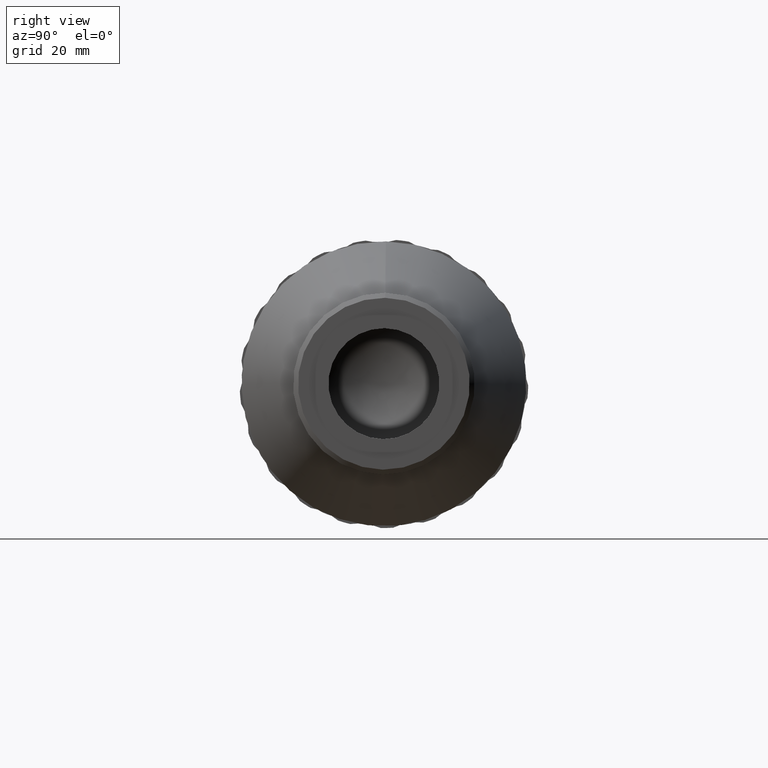
[diagram: clean part render]
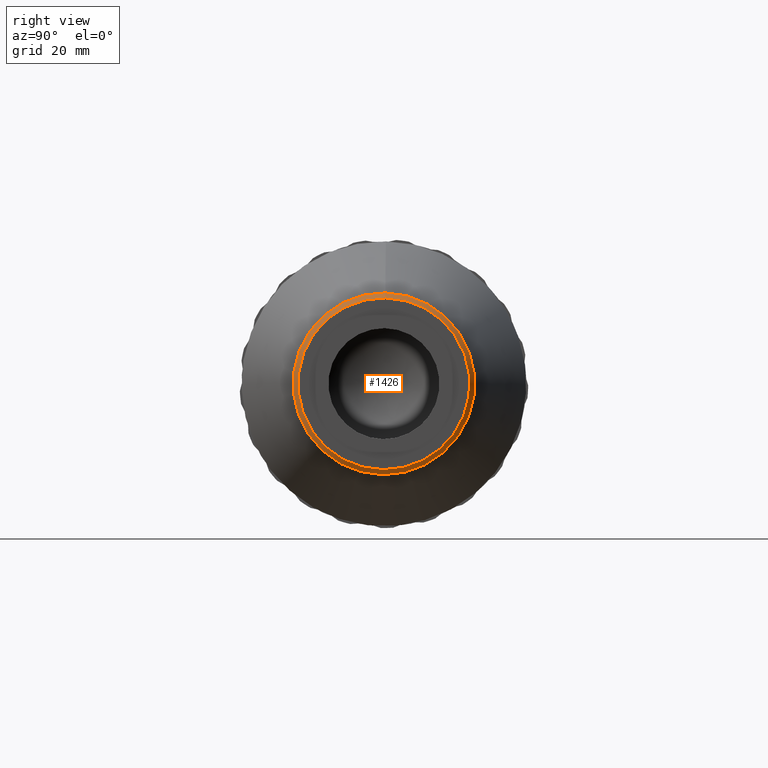
[diagram: same view with one face highlighted and labeled with its STEP entity id]
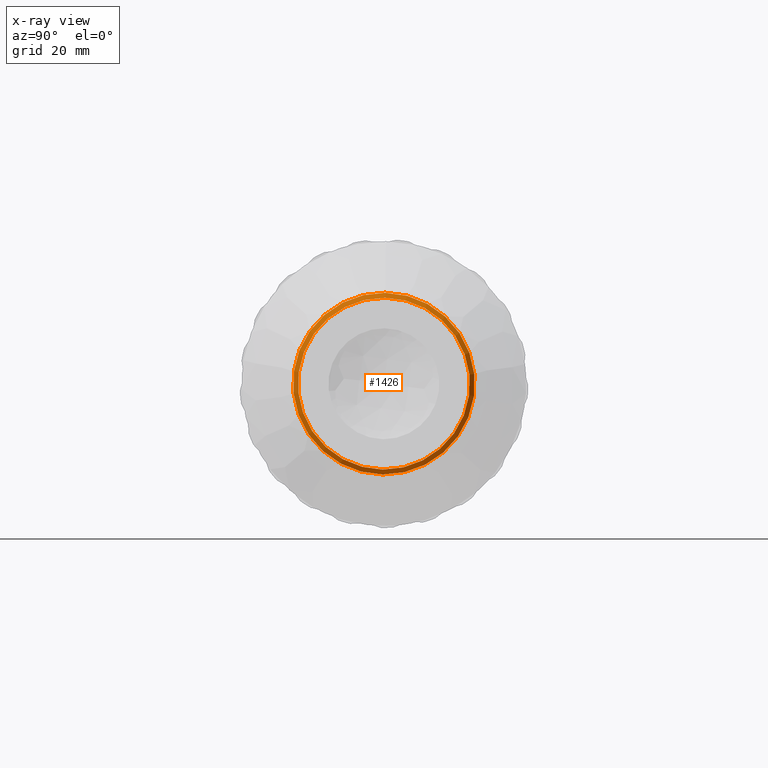
[diagram: x-ray of the same camera — body ghosted, the highlighted face saturated]
A machine part, right view. The second image highlights one B-rep face of the part: STEP entity #1426.
The next image is the same camera in x-ray: the body ghosted, the highlighted face saturated — about 0% of this face is hidden behind the body in this view.
In plain terms, the highlighted conical surface has half-angle 45 deg.
Its self-contained STEP definition (entity closure, byte-faithful):
#127 = CARTESIAN_POINT ( 'NONE',  ( 55.73857057699896700, 7.505051596864218411, 147.3481904415022541 ) ) ;
#655 = ORIENTED_EDGE ( 'NONE', *, *, #3024, .F. ) ;
#791 = DIRECTION ( 'NONE',  ( -1.000000000000000000, -0.000000000000000000, 0.000000000000000000 ) ) ;
#1004 = AXIS2_PLACEMENT_3D ( 'NONE', #4521, #791, #1954 ) ;
#1265 = EDGE_LOOP ( 'NONE', ( #655 ) ) ;
#1281 = CARTESIAN_POINT ( 'NONE',  ( 55.73857057699896700, 7.247355026533550237, 128.9999999999998295 ) ) ;
#1325 = ORIENTED_EDGE ( 'NONE', *, *, #3771, .F. ) ;
#1426 = ADVANCED_FACE ( 'NONE', ( #3141, #4535 ), #1586, .T. ) ;
#1586 = CONICAL_SURFACE ( 'NONE', #2883, 18.35000000000000853, 0.7853981633974500554 ) ;
#1954 = DIRECTION ( 'NONE',  ( 0.000000000000000000, 0.01404340982728435709, 0.9999013864578961686 ) ) ;
#2698 = AXIS2_PLACEMENT_3D ( 'NONE', #4115, #4093, #3754 ) ;
#2883 = AXIS2_PLACEMENT_3D ( 'NONE', #1281, #3494, #4556 ) ;
#3024 = EDGE_CURVE ( 'NONE', #3794, #3794, #3592, .T. ) ;
#3025 = CARTESIAN_POINT ( 'NONE',  ( 56.73857057699898121, 7.491008187036934274, 146.3482890550443187 ) ) ;
#3141 = FACE_BOUND ( 'NONE', #3328, .T. ) ;
#3328 = EDGE_LOOP ( 'NONE', ( #1325 ) ) ;
#3494 = DIRECTION ( 'NONE',  ( -1.000000000000000000, -0.000000000000000000, 0.000000000000000000 ) ) ;
#3592 = CIRCLE ( 'NONE', #1004, 18.35000000000000853 ) ;
#3754 = DIRECTION ( 'NONE',  ( 0.000000000000000000, 0.01404340982728438832, 0.9999013864578961686 ) ) ;
#3771 = EDGE_CURVE ( 'NONE', #4101, #4101, #3919, .T. ) ;
#3794 = VERTEX_POINT ( 'NONE', #127 ) ;
#3919 = CIRCLE ( 'NONE', #2698, 17.34999999999998721 ) ;
#4093 = DIRECTION ( 'NONE',  ( 1.000000000000000000, 0.000000000000000000, -0.000000000000000000 ) ) ;
#4101 = VERTEX_POINT ( 'NONE', #3025 ) ;
#4115 = CARTESIAN_POINT ( 'NONE',  ( 56.73857057699898121, 7.247355026533550237, 128.9999999999998295 ) ) ;
#4521 = CARTESIAN_POINT ( 'NONE',  ( 55.73857057699896700, 7.247355026533550237, 128.9999999999998295 ) ) ;
#4535 = FACE_OUTER_BOUND ( 'NONE', #1265, .T. ) ;
#4556 = DIRECTION ( 'NONE',  ( 0.000000000000000000, 0.01404340982728435709, 0.9999013864578961686 ) ) ;